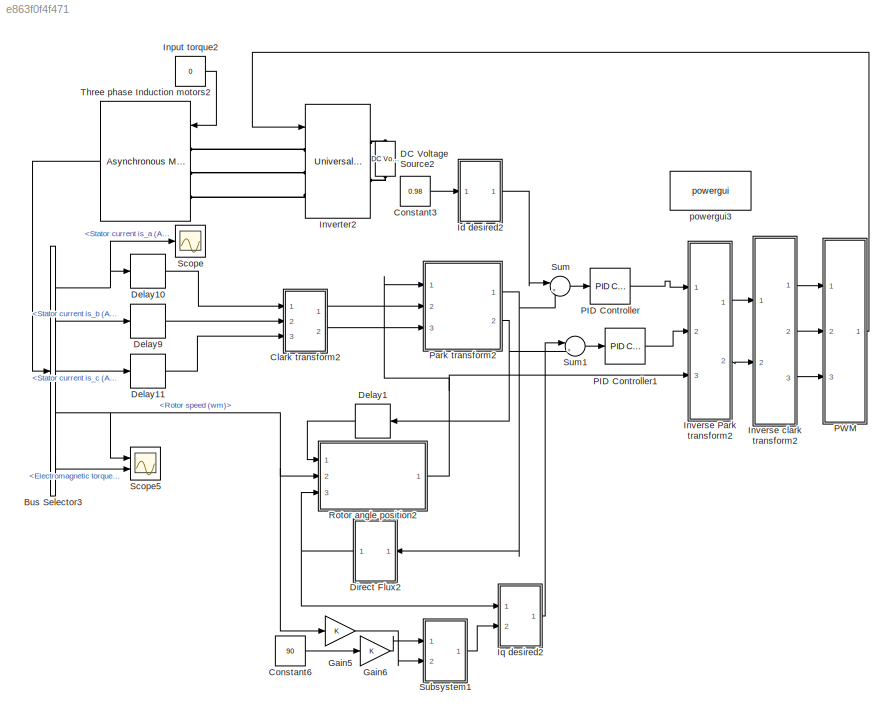
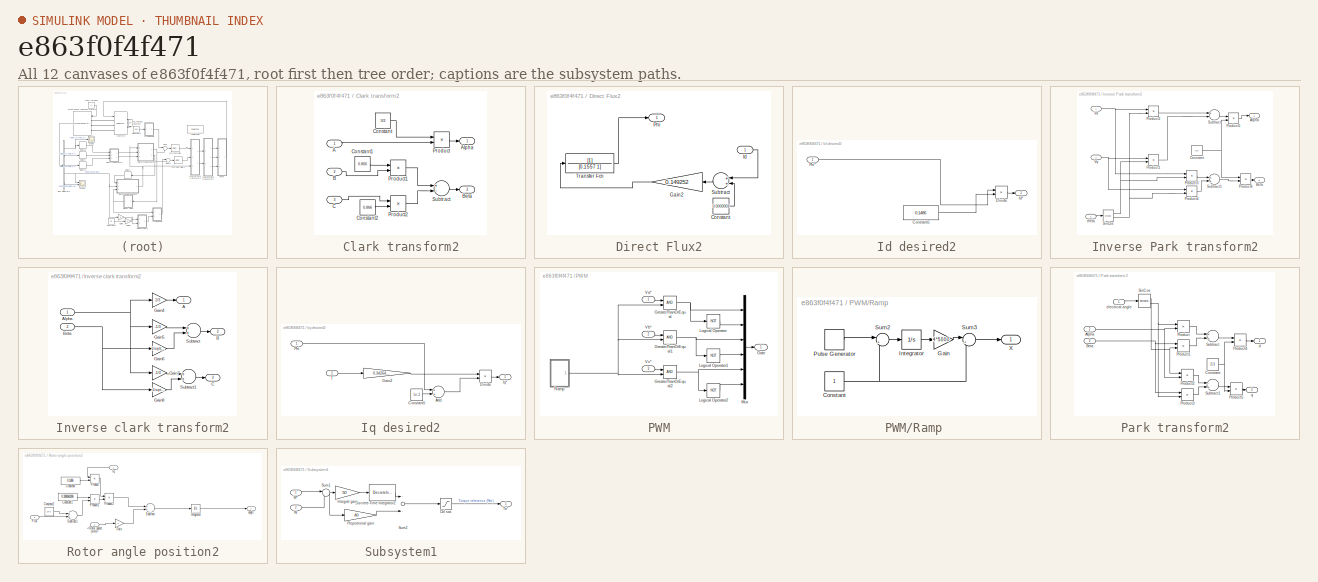
[diagram: thumbnail index - all 12 canvases of the model, root first then tree order]
MODEL slx_e863f0f4f471
KIND model
CONFIG AbsTol = auto
CONFIG FixedStep = auto
CONFIG MaxStep = auto
CONFIG MinStep = auto
CONFIG RelTol = 1e-3
CONFIG SampleTimeConstraint = Unconstrained
CONFIG Solver = ode45
CONFIG SolverMode = Auto
CONFIG SolverName = ode45
CONFIG StartTime = 0.0
CONFIG StopTime = 10.0
BLOCK [BusSelector] Bus Selector3
  OutputSignals = Stator measurements.Stator current is_a (A),Stator measurements.Stator current is_b (A),Stator measurements.Stator current is_c (A),Mechanical.Rotor speed (wm),Mechanical.Electromagnetic torque Te (N*m)
  Ports = [1, 5]
BLOCK [SubSystem] Clark transform2
  Ports = [3, 2]
  RequestExecContextInheritance = off
  Variant = off
BLOCK [Inport] Clark transform2/A
  IconDisplay = Port number
BLOCK [Outport] Clark transform2/Alpha
  IconDisplay = Port number
BLOCK [Inport] Clark transform2/B
  IconDisplay = Port number
  Port = 2
BLOCK [Outport] Clark transform2/Beta
  IconDisplay = Port number
  Port = 2
BLOCK [Inport] Clark transform2/C
  IconDisplay = Port number
  Port = 3
BLOCK [Constant] Clark transform2/Constant
  Value = 3/2
BLOCK [Constant] Clark transform2/Constant1
  Value = 0.866
BLOCK [Constant] Clark transform2/Constant2
  Value = 0.866
BLOCK [Product] Clark transform2/Product
  InputSameDT = off
  OutDataTypeStr = Inherit: Inherit via internal rule
  Ports = [2, 1]
  RndMeth = Floor
  SaturateOnIntegerOverflow = off
BLOCK [Product] Clark transform2/Product1
  InputSameDT = off
  OutDataTypeStr = Inherit: Inherit via internal rule
  Ports = [2, 1]
  RndMeth = Floor
  SaturateOnIntegerOverflow = off
BLOCK [Product] Clark transform2/Product2
  InputSameDT = off
  OutDataTypeStr = Inherit: Inherit via internal rule
  Ports = [2, 1]
  RndMeth = Floor
  SaturateOnIntegerOverflow = off
BLOCK [Sum] Clark transform2/Subtract
  InputSameDT = off
  Inputs = +-
  OutDataTypeStr = Inherit: Inherit via internal rule
  Ports = [2, 1]
  SaturateOnIntegerOverflow = off
BLOCK [Constant] Constant3
  Value = 0.98
BLOCK [Constant] Constant6
  Value = 90
BLOCK [Reference] DC Voltage Source2  REF=powerlib/Electrical
Sources/DC Voltage Source
  Ports = [0, 0, 0, 0, 0, 1, 1]
  SourceBlock = powerlib/Electrical\nSources/DC Voltage Source
  SourceType = DC Voltage Source
BLOCK [Delay] Delay1
  DelayLength = 1
  InitialCondition = 0
  InputPortMap = u0
  Ports = [1, 1]
  SampleTime = 0.0001
BLOCK [Delay] Delay10
  DelayLength = 1
  InitialCondition = 0
  InputPortMap = u0
  Ports = [1, 1]
BLOCK [Delay] Delay11
  DelayLength = 1
  InitialCondition = 0
  InputPortMap = u0
  Ports = [1, 1]
BLOCK [Delay] Delay9
  DelayLength = 1
  InitialCondition = 0
  InputPortMap = u0
  Ports = [1, 1]
BLOCK [SubSystem] Direct Flux2
  Ports = [1, 1]
  RequestExecContextInheritance = off
  Variant = off
BLOCK [Constant] Direct Flux2/Constant
  Value = 0.0000001
BLOCK [Gain] Direct Flux2/Gain2
  Gain = 0.149252
  OutDataTypeStr = Inherit: Inherit via internal rule
  ParamDataTypeStr = Inherit: Inherit via internal rule
  SaturateOnIntegerOverflow = off
BLOCK [Inport] Direct Flux2/Id
  IconDisplay = Port number
BLOCK [Outport] Direct Flux2/Phi
  IconDisplay = Port number
BLOCK [Sum] Direct Flux2/Subtract
  InputSameDT = off
  OutDataTypeStr = Inherit: Inherit via internal rule
  Ports = [2, 1]
  SaturateOnIntegerOverflow = off
BLOCK [TransferFcn] Direct Flux2/Transfer Fcn
  Denominator = [0.1557 1]
BLOCK [Gain] Gain5
  OutDataTypeStr = Inherit: Inherit via internal rule
  ParamDataTypeStr = Inherit: Inherit via internal rule
  SaturateOnIntegerOverflow = off
BLOCK [Gain] Gain6
  OutDataTypeStr = Inherit: Inherit via internal rule
  ParamDataTypeStr = Inherit: Inherit via internal rule
  SaturateOnIntegerOverflow = off
BLOCK [SubSystem] Id desired2
  Ports = [1, 1]
  RequestExecContextInheritance = off
  Variant = off
BLOCK [Constant] Id desired2/Constant5
  Value = 0.1486
BLOCK [Product] Id desired2/Divide
  InputSameDT = off
  Inputs = */
  OutDataTypeStr = Inherit: Inherit via internal rule
  Ports = [2, 1]
  RndMeth = Floor
  SaturateOnIntegerOverflow = off
BLOCK [Outport] Id desired2/Id*
  IconDisplay = Port number
BLOCK [Inport] Id desired2/Phi*
  IconDisplay = Port number
BLOCK [Constant] Input torque2
  Value = 0
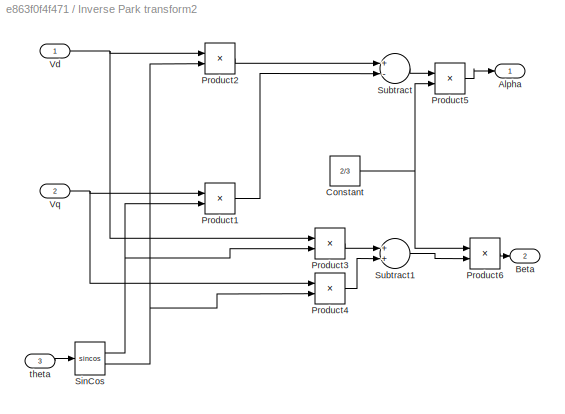
BLOCK [SubSystem] Inverse Park transform2
  Ports = [3, 2]
  RequestExecContextInheritance = off
  Variant = off
BLOCK [Outport] Inverse Park transform2/Alpha
  IconDisplay = Port number
BLOCK [Outport] Inverse Park transform2/Beta
  IconDisplay = Port number
  Port = 2
BLOCK [Constant] Inverse Park transform2/Constant
  Value = 2/3
BLOCK [Product] Inverse Park transform2/Product1
  InputSameDT = off
  OutDataTypeStr = Inherit: Inherit via internal rule
  Ports = [2, 1]
  RndMeth = Floor
  SaturateOnIntegerOverflow = off
BLOCK [Product] Inverse Park transform2/Product2
  InputSameDT = off
  OutDataTypeStr = Inherit: Inherit via internal rule
  Ports = [2, 1]
  RndMeth = Floor
  SaturateOnIntegerOverflow = off
BLOCK [Product] Inverse Park transform2/Product3
  InputSameDT = off
  OutDataTypeStr = Inherit: Inherit via internal rule
  Ports = [2, 1]
  RndMeth = Floor
  SaturateOnIntegerOverflow = off
BLOCK [Product] Inverse Park transform2/Product4
  InputSameDT = off
  OutDataTypeStr = Inherit: Inherit via internal rule
  Ports = [2, 1]
  RndMeth = Floor
  SaturateOnIntegerOverflow = off
BLOCK [Product] Inverse Park transform2/Product5
  InputSameDT = off
  OutDataTypeStr = Inherit: Inherit via internal rule
  Ports = [2, 1]
  RndMeth = Floor
  SaturateOnIntegerOverflow = off
BLOCK [Product] Inverse Park transform2/Product6
  InputSameDT = off
  OutDataTypeStr = Inherit: Inherit via internal rule
  Ports = [2, 1]
  RndMeth = Floor
  SaturateOnIntegerOverflow = off
BLOCK [Trigonometry] Inverse Park transform2/SinCos
  Operator = sincos
  Ports = [1, 2]
BLOCK [Sum] Inverse Park transform2/Subtract
  InputSameDT = off
  Inputs = +-
  OutDataTypeStr = Inherit: Inherit via internal rule
  Ports = [2, 1]
  SaturateOnIntegerOverflow = off
BLOCK [Sum] Inverse Park transform2/Subtract1
  InputSameDT = off
  OutDataTypeStr = Inherit: Inherit via internal rule
  Ports = [2, 1]
  SaturateOnIntegerOverflow = off
BLOCK [Inport] Inverse Park transform2/Vd
  IconDisplay = Port number
BLOCK [Inport] Inverse Park transform2/Vq
  IconDisplay = Port number
  Port = 2
BLOCK [Inport] Inverse Park transform2/theta
  IconDisplay = Port number
  Port = 3
BLOCK [SubSystem] Inverse clark transform2
  Ports = [2, 3]
  RequestExecContextInheritance = off
  Variant = off
BLOCK [Outport] Inverse clark transform2/A
  IconDisplay = Port number
BLOCK [Inport] Inverse clark transform2/Alpha
  IconDisplay = Port number
BLOCK [Outport] Inverse clark transform2/B
  IconDisplay = Port number
  Port = 2
BLOCK [Inport] Inverse clark transform2/Beta
  IconDisplay = Port number
  Port = 2
BLOCK [Outport] Inverse clark transform2/C
  IconDisplay = Port number
  Port = 3
BLOCK [Gain] Inverse clark transform2/Gain4
  Gain = 2/3
  OutDataTypeStr = Inherit: Inherit via internal rule
  ParamDataTypeStr = Inherit: Inherit via internal rule
  SaturateOnIntegerOverflow = off
BLOCK [Gain] Inverse clark transform2/Gain5
  Gain = -1/3
  OutDataTypeStr = Inherit: Inherit via internal rule
  ParamDataTypeStr = Inherit: Inherit via internal rule
  SaturateOnIntegerOverflow = off
BLOCK [Gain] Inverse clark transform2/Gain6
  Gain = 1/sqrt(3)
  OutDataTypeStr = Inherit: Inherit via internal rule
  ParamDataTypeStr = Inherit: Inherit via internal rule
  SaturateOnIntegerOverflow = off
BLOCK [Gain] Inverse clark transform2/Gain7
  Gain = -1/3
  OutDataTypeStr = Inherit: Inherit via internal rule
  ParamDataTypeStr = Inherit: Inherit via internal rule
  SaturateOnIntegerOverflow = off
BLOCK [Gain] Inverse clark transform2/Gain8
  Gain = -1/sqrt(3)
  OutDataTypeStr = Inherit: Inherit via internal rule
  ParamDataTypeStr = Inherit: Inherit via internal rule
  SaturateOnIntegerOverflow = off
BLOCK [Sum] Inverse clark transform2/Subtract
  InputSameDT = off
  OutDataTypeStr = Inherit: Inherit via internal rule
  Ports = [2, 1]
  SaturateOnIntegerOverflow = off
BLOCK [Sum] Inverse clark transform2/Subtract1
  InputSameDT = off
  OutDataTypeStr = Inherit: Inherit via internal rule
  Ports = [2, 1]
  SaturateOnIntegerOverflow = off
BLOCK [Reference] Inverter2  REF=powerlib/Power
Electronics/Universal Bridge
  Ports = [1, 0, 0, 0, 0, 3, 2]
  SourceBlock = powerlib/Power\nElectronics/Universal Bridge
  SourceType = Universal Bridge
BLOCK [SubSystem] Iq desired2
  Ports = [2, 1]
  RequestExecContextInheritance = off
  Variant = off
BLOCK [Sum] Iq desired2/Add
  InputSameDT = off
  OutDataTypeStr = Inherit: Inherit via internal rule
  Ports = [2, 1]
  SaturateOnIntegerOverflow = off
BLOCK [Constant] Iq desired2/Constant5
  Value = 1e-3
BLOCK [Product] Iq desired2/Divide
  InputSameDT = off
  Inputs = */
  OutDataTypeStr = Inherit: Inherit via internal rule
  Ports = [2, 1]
  RndMeth = Floor
  SaturateOnIntegerOverflow = off
BLOCK [Gain] Iq desired2/Gain2
  Gain = 0.3426469269
  OutDataTypeStr = Inherit: Inherit via internal rule
  ParamDataTypeStr = Inherit: Inherit via internal rule
  SaturateOnIntegerOverflow = off
BLOCK [Outport] Iq desired2/Iq*
  IconDisplay = Port number
BLOCK [Inport] Iq desired2/Phi
  IconDisplay = Port number
BLOCK [Inport] Iq desired2/T
  IconDisplay = Port number
  Port = 2
BLOCK [Reference] PID Controller  REF=simulink/Continuous/PID Controller
  Ports = [1, 1]
  SourceBlock = simulink/Continuous/PID Controller
  SourceType = PID 1dof
BLOCK [Reference] PID Controller1  REF=simulink/Continuous/PID Controller
  Ports = [1, 1]
  SourceBlock = simulink/Continuous/PID Controller
  SourceType = PID 1dof
BLOCK [SubSystem] PWM
  Ports = [3, 1]
  RequestExecContextInheritance = off
  Variant = off
BLOCK [Outport] PWM/Gate
  IconDisplay = Port number
BLOCK [RelationalOperator] PWM/GreaterThanOrEqual
  InputSameDT = off
  OutDataTypeStr = boolean
  Ports = [2, 1]
BLOCK [RelationalOperator] PWM/GreaterThanOrEqual1
  InputSameDT = off
  OutDataTypeStr = boolean
  Ports = [2, 1]
BLOCK [RelationalOperator] PWM/GreaterThanOrEqual2
  InputSameDT = off
  OutDataTypeStr = boolean
  Ports = [2, 1]
BLOCK [Logic] PWM/Logical Operator
  AllPortsSameDT = off
  Operator = NOT
  OutDataTypeStr = boolean
  Ports = [1, 1]
BLOCK [Logic] PWM/Logical Operator1
  AllPortsSameDT = off
  Operator = NOT
  OutDataTypeStr = boolean
  Ports = [1, 1]
BLOCK [Logic] PWM/Logical Operator2
  AllPortsSameDT = off
  Operator = NOT
  OutDataTypeStr = boolean
  Ports = [1, 1]
BLOCK [Mux] PWM/Mux
  DisplayOption = bar
  Inputs = 6
  Ports = [6, 1]
BLOCK [SubSystem] PWM/Ramp 
  Ports = [0, 1]
  RequestExecContextInheritance = off
  Variant = off
BLOCK [Constant] PWM/Ramp /Constant
BLOCK [Gain] PWM/Ramp /Gain
  Gain = 4*5000
  OutDataTypeStr = Inherit: Inherit via internal rule
  ParamDataTypeStr = Inherit: Inherit via internal rule
  SaturateOnIntegerOverflow = off
BLOCK [Integrator] PWM/Ramp /Integrator
  Ports = [1, 1]
BLOCK [DiscretePulseGenerator] PWM/Ramp /Pulse Generator
  Amplitude = 2
  Period = 1/5000
  Ports = [0, 1]
  PulseType = Time based
  PulseWidth = 5
BLOCK [Sum] PWM/Ramp /Sum2
  IconShape = round
  InputSameDT = off
  Inputs = |+-
  OutDataTypeStr = Inherit: Inherit via internal rule
  Ports = [2, 1]
  SaturateOnIntegerOverflow = off
BLOCK [Sum] PWM/Ramp /Sum3
  IconShape = round
  InputSameDT = off
  Inputs = |+-
  OutDataTypeStr = Inherit: Inherit via internal rule
  Ports = [2, 1]
  SaturateOnIntegerOverflow = off
BLOCK [Outport] PWM/Ramp /X
  IconDisplay = Port number
BLOCK [Inport] PWM/Va*
  IconDisplay = Port number
BLOCK [Inport] PWM/Vb*
  IconDisplay = Port number
  Port = 2
BLOCK [Inport] PWM/Vc*
  IconDisplay = Port number
  Port = 3
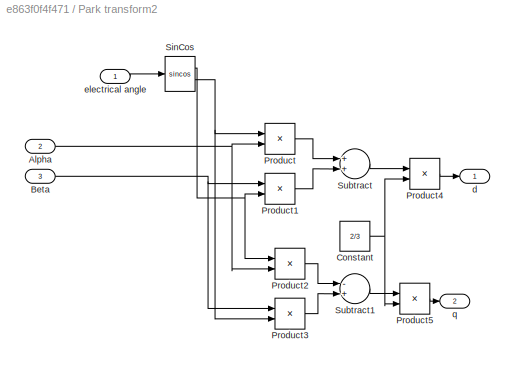
BLOCK [SubSystem] Park transform2
  Ports = [3, 2]
  RequestExecContextInheritance = off
  Variant = off
BLOCK [Inport] Park transform2/Alpha
  IconDisplay = Port number
  Port = 2
BLOCK [Inport] Park transform2/Beta
  IconDisplay = Port number
  Port = 3
BLOCK [Constant] Park transform2/Constant
  Value = 2/3
BLOCK [Product] Park transform2/Product
  InputSameDT = off
  OutDataTypeStr = Inherit: Inherit via internal rule
  Ports = [2, 1]
  RndMeth = Floor
  SaturateOnIntegerOverflow = off
BLOCK [Product] Park transform2/Product1
  InputSameDT = off
  OutDataTypeStr = Inherit: Inherit via internal rule
  Ports = [2, 1]
  RndMeth = Floor
  SaturateOnIntegerOverflow = off
BLOCK [Product] Park transform2/Product2
  InputSameDT = off
  OutDataTypeStr = Inherit: Inherit via internal rule
  Ports = [2, 1]
  RndMeth = Floor
  SaturateOnIntegerOverflow = off
BLOCK [Product] Park transform2/Product3
  InputSameDT = off
  OutDataTypeStr = Inherit: Inherit via internal rule
  Ports = [2, 1]
  RndMeth = Floor
  SaturateOnIntegerOverflow = off
BLOCK [Product] Park transform2/Product4
  InputSameDT = off
  Inputs = */
  OutDataTypeStr = Inherit: Inherit via internal rule
  Ports = [2, 1]
  RndMeth = Floor
  SaturateOnIntegerOverflow = off
BLOCK [Product] Park transform2/Product5
  InputSameDT = off
  Inputs = */
  OutDataTypeStr = Inherit: Inherit via internal rule
  Ports = [2, 1]
  RndMeth = Floor
  SaturateOnIntegerOverflow = off
BLOCK [Trigonometry] Park transform2/SinCos
  Operator = sincos
  Ports = [1, 2]
BLOCK [Sum] Park transform2/Subtract
  InputSameDT = off
  OutDataTypeStr = Inherit: Inherit via internal rule
  Ports = [2, 1]
  SaturateOnIntegerOverflow = off
BLOCK [Sum] Park transform2/Subtract1
  InputSameDT = off
  Inputs = -+
  OutDataTypeStr = Inherit: Inherit via internal rule
  Ports = [2, 1]
  SaturateOnIntegerOverflow = off
BLOCK [Outport] Park transform2/d
  IconDisplay = Port number
BLOCK [Inport] Park transform2/electrical angle
  IconDisplay = Port number
BLOCK [Outport] Park transform2/q
  IconDisplay = Port number
  Port = 2
BLOCK [SubSystem] Rotor angle position2
  Ports = [3, 1]
  RequestExecContextInheritance = off
  Variant = off
BLOCK [Inport] Rotor angle position2/<Rotor speed (wm)>
  IconDisplay = Port number
  Port = 2
BLOCK [Constant] Rotor angle position2/Constant
  Value = 0.1486
BLOCK [Constant] Rotor angle position2/Constant1
  Value = 0.3386962306
BLOCK [Constant] Rotor angle position2/Constant2
  Value = 1e-3
BLOCK [Inport] Rotor angle position2/Flux
  IconDisplay = Port number
  Port = 3
BLOCK [Gain] Rotor angle position2/Gain
  OutDataTypeStr = Inherit: Inherit via internal rule
  ParamDataTypeStr = Inherit: Inherit via internal rule
  SaturateOnIntegerOverflow = off
BLOCK [Integrator] Rotor angle position2/Integrator
  AbsoluteTolerance = 2*10^-6
  Ports = [1, 1]
  ZeroCross = off
BLOCK [Inport] Rotor angle position2/Iq
  IconDisplay = Port number
BLOCK [Product] Rotor angle position2/Product
  InputSameDT = off
  OutDataTypeStr = Inherit: Inherit via internal rule
  Ports = [2, 1]
  RndMeth = Floor
  SaturateOnIntegerOverflow = off
BLOCK [Product] Rotor angle position2/Product1
  InputSameDT = off
  OutDataTypeStr = Inherit: Inherit via internal rule
  Ports = [2, 1]
  RndMeth = Floor
  SaturateOnIntegerOverflow = off
BLOCK [Product] Rotor angle position2/Product2
  InputSameDT = off
  Inputs = */
  OutDataTypeStr = Inherit: Inherit via internal rule
  Ports = [2, 1]
  RndMeth = Floor
  SaturateOnIntegerOverflow = off
BLOCK [Sum] Rotor angle position2/Subtract
  InputSameDT = off
  OutDataTypeStr = Inherit: Inherit via internal rule
  Ports = [2, 1]
  SaturateOnIntegerOverflow = off
BLOCK [Sum] Rotor angle position2/Subtract1
  InputSameDT = off
  OutDataTypeStr = Inherit: Inherit via internal rule
  Ports = [2, 1]
  SaturateOnIntegerOverflow = off
BLOCK [Outport] Rotor angle position2/angle
  IconDisplay = Port number
BLOCK [Scope] Scope
  Ports = [1]
  ScopeSpecificationString = C++SS(StrPVP('SaveName','ScopeData1'))
BLOCK [Scope] Scope5
  NumInputPorts = 2
  Ports = [2]
  ScopeSpecificationString = Simulink.scopes.TimeScopeBlockCfg('CurrentConfiguration', extmgr.ConfigurationSet(extmgr.Configuration('Core','General UI',true),extmgr.Configuration('Core','Source UI',true),extmgr.Configuration('Sources','WiredSimulink',true),extmgr.Configuration('Visuals','Time Domain',true,'SerializedDisplays',{struct('MinYLimReal','-15.13942','MaxYLimReal','136.2548','YLabelReal','','MinYLimMag','0.00000','Ma...<+1993ch>
BLOCK [SubSystem] Subsystem1
  Ports = [2, 1]
  RequestExecContextInheritance = off
  Variant = off
BLOCK [Saturate] Subsystem1/Ctrl sat.
  InputPortMap = u0
  LowerLimit = -2000
  Ports = [1, 1]
  UpperLimit = 1e6
BLOCK [DiscreteIntegrator] Subsystem1/Discrete-Time Integrator2
  ICPrevOutput = DiscIntNeverNeededParam
  ICPrevScaledInput = DiscIntNeverNeededParam
  IntegratorMethod = Integration: Trapezoidal
  LowerSaturationLimit = ctrl_sat(1)
  Ports = [1, 1]
  SampleTime = -1
  UpperSaturationLimit = ctrl_sat(2)
BLOCK [Gain] Subsystem1/Integral gain
  Gain = 50
BLOCK [Gain] Subsystem1/Proportional gain
  Gain = 40
BLOCK [Sum] Subsystem1/Sum1
  IconShape = round
  Inputs = |+-
  Ports = [2, 1]
BLOCK [Sum] Subsystem1/Sum2
  Ports = [2, 1]
BLOCK [Outport] Subsystem1/Te*
  IconDisplay = Port number
BLOCK [Inport] Subsystem1/W
  IconDisplay = Port number
  Port = 2
BLOCK [Inport] Subsystem1/W*
  IconDisplay = Port number
BLOCK [Sum] Sum
  IconShape = round
  InputSameDT = off
  Inputs = |+-
  OutDataTypeStr = Inherit: Inherit via internal rule
  Ports = [2, 1]
  SaturateOnIntegerOverflow = off
BLOCK [Sum] Sum1
  IconShape = round
  InputSameDT = off
  Inputs = |+-
  OutDataTypeStr = Inherit: Inherit via internal rule
  Ports = [2, 1]
  SaturateOnIntegerOverflow = off
BLOCK [Reference] Three phase Induction motors2  REF=powerlib/Machines/Asynchronous Machine
SI Units
  Ports = [1, 1, 0, 0, 0, 3]
  SourceBlock = powerlib/Machines/Asynchronous Machine\nSI Units
  SourceType = Asynchronous Machine
BLOCK [Reference] powergui3  REF=powerlib/powergui
  Ports = []
  Priority = 1
  SourceBlock = powerlib/powergui
  SourceType = PSB option menu block
NET Bus Selector3:1 -> Delay10:1, Scope:1
LINE Bus Selector3:2 -> Delay9:1
LINE Bus Selector3:3 -> Delay11:1
NET Bus Selector3:4 -> Gain5:1, Rotor angle position2:2, Scope5:1
LINE Bus Selector3:5 -> Scope5:2
LINE Clark transform2/A:1 -> Clark transform2/Product:2
LINE Clark transform2/B:1 -> Clark transform2/Product1:2
LINE Clark transform2/C:1 -> Clark transform2/Product2:1
LINE Clark transform2/Constant1:1 -> Clark transform2/Product1:1
LINE Clark transform2/Constant2:1 -> Clark transform2/Product2:2
LINE Clark transform2/Constant:1 -> Clark transform2/Product:1
LINE Clark transform2/Product1:1 -> Clark transform2/Subtract:1
LINE Clark transform2/Product2:1 -> Clark transform2/Subtract:2
LINE Clark transform2/Product:1 -> Clark transform2/Alpha:1
LINE Clark transform2/Subtract:1 -> Clark transform2/Beta:1
LINE Clark transform2:1 -> Park transform2:2
LINE Clark transform2:2 -> Park transform2:3
LINE Constant3:1 -> Id desired2:1
LINE Constant6:1 -> Gain6:1
LINE Delay10:1 -> Clark transform2:1
LINE Delay11:1 -> Clark transform2:3
LINE Delay1:1 -> Rotor angle position2:1
LINE Delay9:1 -> Clark transform2:2
LINE Direct Flux2/Constant:1 -> Direct Flux2/Subtract:2
LINE Direct Flux2/Gain2:1 -> Direct Flux2/Transfer Fcn:1
LINE Direct Flux2/Id:1 -> Direct Flux2/Subtract:1
LINE Direct Flux2/Subtract:1 -> Direct Flux2/Gain2:1
LINE Direct Flux2/Transfer Fcn:1 -> Direct Flux2/Phi:1
NET Direct Flux2:1 -> Iq desired2:1, Rotor angle position2:3
LINE Gain5:1 -> Subsystem1:2
LINE Gain6:1 -> Subsystem1:1
LINE Id desired2/Constant5:1 -> Id desired2/Divide:2
LINE Id desired2/Divide:1 -> Id desired2/Id*:1
LINE Id desired2/Phi*:1 -> Id desired2/Divide:1
LINE Id desired2:1 -> Sum:1
LINE Input torque2:1 -> Three phase Induction motors2:1
NET Inverse Park transform2/Constant:1 -> Inverse Park transform2/Product5:2, Inverse Park transform2/Product6:1
LINE Inverse Park transform2/Product1:1 -> Inverse Park transform2/Subtract:2
LINE Inverse Park transform2/Product2:1 -> Inverse Park transform2/Subtract:1
LINE Inverse Park transform2/Product3:1 -> Inverse Park transform2/Subtract1:1
LINE Inverse Park transform2/Product4:1 -> Inverse Park transform2/Subtract1:2
LINE Inverse Park transform2/Product5:1 -> Inverse Park transform2/Alpha:1
LINE Inverse Park transform2/Product6:1 -> Inverse Park transform2/Beta:1
NET Inverse Park transform2/SinCos:1 -> Inverse Park transform2/Product1:2, Inverse Park transform2/Product3:2
NET Inverse Park transform2/SinCos:2 -> Inverse Park transform2/Product2:2, Inverse Park transform2/Product4:2
LINE Inverse Park transform2/Subtract1:1 -> Inverse Park transform2/Product6:2
LINE Inverse Park transform2/Subtract:1 -> Inverse Park transform2/Product5:1
NET Inverse Park transform2/Vd:1 -> Inverse Park transform2/Product2:1, Inverse Park transform2/Product3:1
NET Inverse Park transform2/Vq:1 -> Inverse Park transform2/Product1:1, Inverse Park transform2/Product4:1
LINE Inverse Park transform2/theta:1 -> Inverse Park transform2/SinCos:1
LINE Inverse Park transform2:1 -> Inverse clark transform2:1
LINE Inverse Park transform2:2 -> Inverse clark transform2:2
NET Inverse clark transform2/Alpha:1 -> Inverse clark transform2/Gain4:1, Inverse clark transform2/Gain5:1, Inverse clark transform2/Gain7:1
NET Inverse clark transform2/Beta:1 -> Inverse clark transform2/Gain6:1, Inverse clark transform2/Gain8:1
LINE Inverse clark transform2/Gain4:1 -> Inverse clark transform2/A:1
LINE Inverse clark transform2/Gain5:1 -> Inverse clark transform2/Subtract:1
LINE Inverse clark transform2/Gain6:1 -> Inverse clark transform2/Subtract:2
LINE Inverse clark transform2/Gain7:1 -> Inverse clark transform2/Subtract1:1
LINE Inverse clark transform2/Gain8:1 -> Inverse clark transform2/Subtract1:2
LINE Inverse clark transform2/Subtract1:1 -> Inverse clark transform2/C:1
LINE Inverse clark transform2/Subtract:1 -> Inverse clark transform2/B:1
LINE Inverse clark transform2:1 -> PWM:1
LINE Inverse clark transform2:2 -> PWM:2
LINE Inverse clark transform2:3 -> PWM:3
LINE Iq desired2/Add:1 -> Iq desired2/Divide:2
LINE Iq desired2/Constant5:1 -> Iq desired2/Add:2
LINE Iq desired2/Divide:1 -> Iq desired2/Iq*:1
LINE Iq desired2/Gain2:1 -> Iq desired2/Divide:1
LINE Iq desired2/Phi:1 -> Iq desired2/Add:1
LINE Iq desired2/T:1 -> Iq desired2/Gain2:1
LINE Iq desired2:1 -> Sum1:1
LINE PID Controller1:1 -> Inverse Park transform2:2
LINE PID Controller:1 -> Inverse Park transform2:1
NET PWM/GreaterThanOrEqual1:1 -> PWM/Logical Operator1:1, PWM/Mux:3
NET PWM/GreaterThanOrEqual2:1 -> PWM/Logical Operator2:1, PWM/Mux:5
NET PWM/GreaterThanOrEqual:1 -> PWM/Logical Operator:1, PWM/Mux:1
LINE PWM/Logical Operator1:1 -> PWM/Mux:4
LINE PWM/Logical Operator2:1 -> PWM/Mux:6
LINE PWM/Logical Operator:1 -> PWM/Mux:2
LINE PWM/Mux:1 -> PWM/Gate:1
NET PWM/Ramp /Constant:1 -> PWM/Ramp /Sum2:2, PWM/Ramp /Sum3:2
LINE PWM/Ramp /Gain:1 -> PWM/Ramp /Sum3:1
LINE PWM/Ramp /Integrator:1 -> PWM/Ramp /Gain:1
LINE PWM/Ramp /Pulse Generator:1 -> PWM/Ramp /Sum2:1
LINE PWM/Ramp /Sum2:1 -> PWM/Ramp /Integrator:1
LINE PWM/Ramp /Sum3:1 -> PWM/Ramp /X:1
NET PWM/Ramp :1 -> PWM/GreaterThanOrEqual1:2, PWM/GreaterThanOrEqual2:2, PWM/GreaterThanOrEqual:2
LINE PWM/Va*:1 -> PWM/GreaterThanOrEqual:1
LINE PWM/Vb*:1 -> PWM/GreaterThanOrEqual1:1
LINE PWM/Vc*:1 -> PWM/GreaterThanOrEqual2:1
LINE PWM:1 -> Inverter2:1
NET Park transform2/Alpha:1 -> Park transform2/Product2:2, Park transform2/Product:2
NET Park transform2/Beta:1 -> Park transform2/Product1:1, Park transform2/Product3:1
NET Park transform2/Constant:1 -> Park transform2/Product4:2, Park transform2/Product5:2
LINE Park transform2/Product1:1 -> Park transform2/Subtract:2
LINE Park transform2/Product2:1 -> Park transform2/Subtract1:1
LINE Park transform2/Product3:1 -> Park transform2/Subtract1:2
LINE Park transform2/Product4:1 -> Park transform2/d:1
LINE Park transform2/Product5:1 -> Park transform2/q:1
LINE Park transform2/Product:1 -> Park transform2/Subtract:1
NET Park transform2/SinCos:1 -> Park transform2/Product1:2, Park transform2/Product2:1
NET Park transform2/SinCos:2 -> Park transform2/Product3:2, Park transform2/Product:1
LINE Park transform2/Subtract1:1 -> Park transform2/Product5:1
LINE Park transform2/Subtract:1 -> Park transform2/Product4:1
LINE Park transform2/electrical angle:1 -> Park transform2/SinCos:1
NET Park transform2:1 -> Direct Flux2:1, Sum:2
NET Park transform2:2 -> Delay1:1, Sum1:2
LINE Rotor angle position2/<Rotor speed (wm)>:1 -> Rotor angle position2/Gain:1
LINE Rotor angle position2/Constant1:1 -> Rotor angle position2/Product1:1
LINE Rotor angle position2/Constant2:1 -> Rotor angle position2/Subtract1:1
LINE Rotor angle position2/Constant:1 -> Rotor angle position2/Product:2
LINE Rotor angle position2/Flux:1 -> Rotor angle position2/Subtract1:2
LINE Rotor angle position2/Gain:1 -> Rotor angle position2/Subtract:2
LINE Rotor angle position2/Integrator:1 -> Rotor angle position2/angle:1
LINE Rotor angle position2/Iq:1 -> Rotor angle position2/Product:1
LINE Rotor angle position2/Product1:1 -> Rotor angle position2/Product2:2
LINE Rotor angle position2/Product2:1 -> Rotor angle position2/Subtract:1
LINE Rotor angle position2/Product:1 -> Rotor angle position2/Product2:1
LINE Rotor angle position2/Subtract1:1 -> Rotor angle position2/Product1:2
LINE Rotor angle position2/Subtract:1 -> Rotor angle position2/Integrator:1
NET Rotor angle position2:1 -> Inverse Park transform2:3, Park transform2:1
LINE Subsystem1/Ctrl sat.:1 -> Subsystem1/Te*:1
LINE Subsystem1/Discrete-Time Integrator2:1 -> Subsystem1/Sum2:1
LINE Subsystem1/Integral gain:1 -> Subsystem1/Discrete-Time Integrator2:1
LINE Subsystem1/Proportional gain:1 -> Subsystem1/Sum2:2
NET Subsystem1/Sum1:1 -> Subsystem1/Integral gain:1, Subsystem1/Proportional gain:1
LINE Subsystem1/Sum2:1 -> Subsystem1/Ctrl sat.:1
LINE Subsystem1/W*:1 -> Subsystem1/Sum1:1
LINE Subsystem1/W:1 -> Subsystem1/Sum1:2
LINE Subsystem1:1 -> Iq desired2:2
LINE Sum1:1 -> PID Controller1:1
LINE Sum:1 -> PID Controller:1
LINE Three phase Induction motors2:1 -> Bus Selector3:1
PLINE DC Voltage Source2:LConn1 -- Inverter2:RConn2
PLINE DC Voltage Source2:RConn1 -- Inverter2:RConn1
PLINE Inverter2:LConn1 -- Three phase Induction motors2:LConn1
PLINE Inverter2:LConn2 -- Three phase Induction motors2:LConn2
PLINE Inverter2:LConn3 -- Three phase Induction motors2:LConn3
note: NET lines group one-source signal fan-out (src -> all destinations, sorted); 1:1 wires keep LINE
